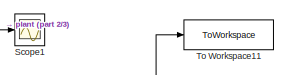
[diagram: root canvas - part 1/3, top center region]
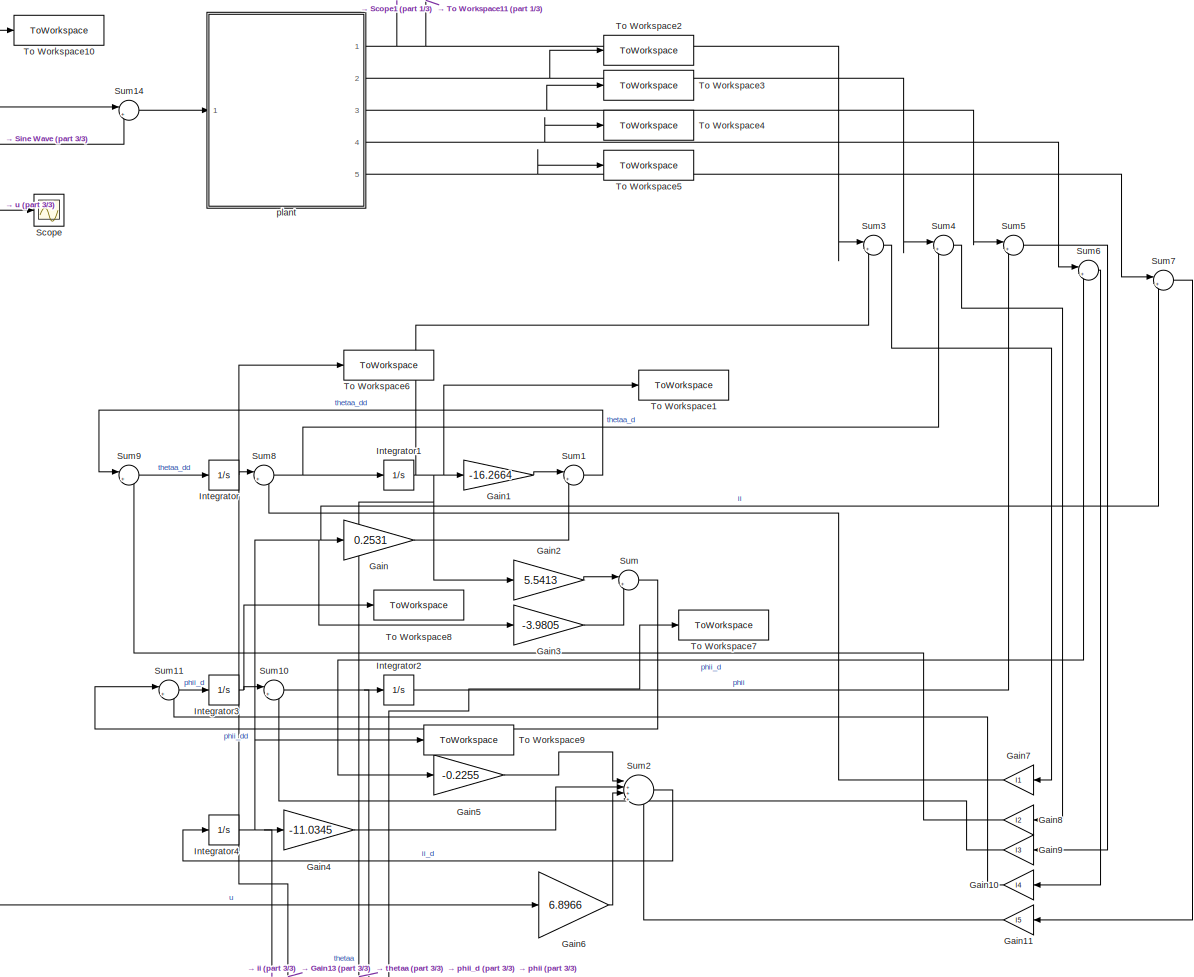
[diagram: root canvas - part 2/3, full width, middle band]
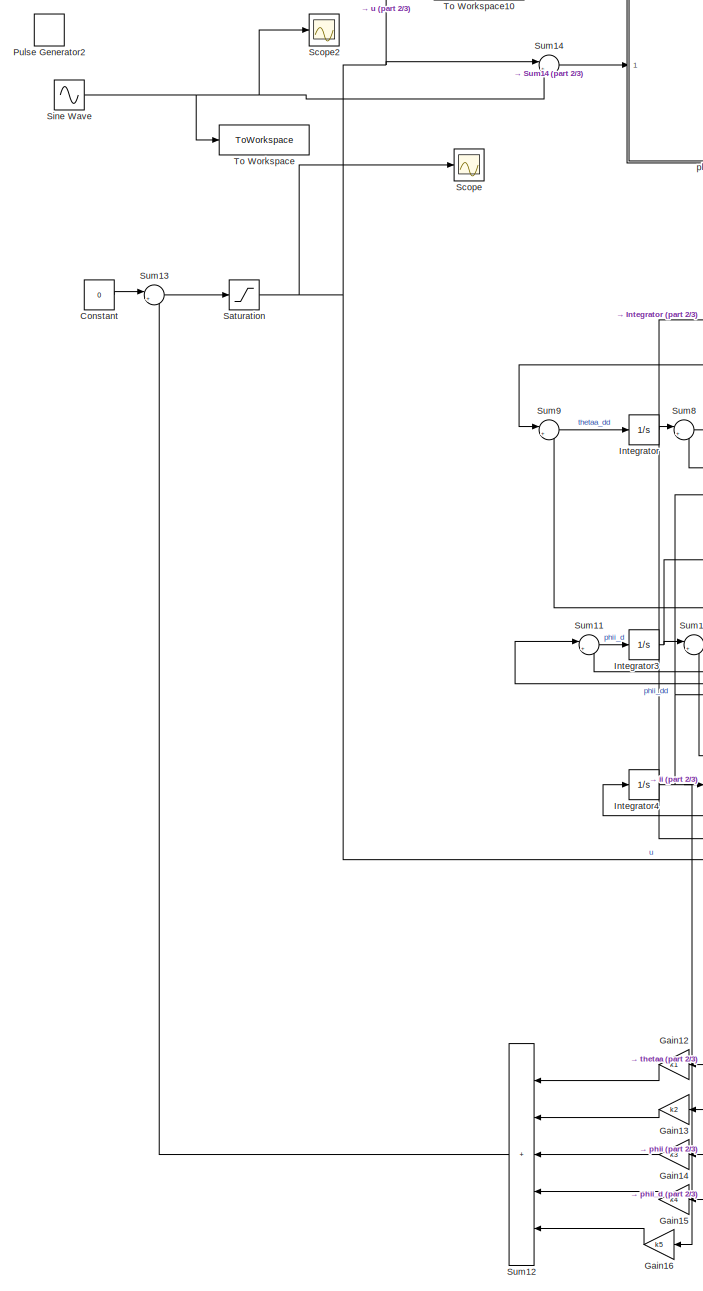
[diagram: root canvas - part 3/3, left side, full height]
MODEL slx_696339b75fb4
KIND model
CONFIG AbsTol = auto
CONFIG EnableMultiTasking = off
CONFIG FixedStep = 0.01
CONFIG MaxStep = auto
CONFIG MinStep = auto
CONFIG RelTol = 1e-3
CONFIG SampleTimeConstraint = Unconstrained
CONFIG SolverName = FixedStepAuto
CONFIG StartTime = 0.0
CONFIG StopTime = 15
BLOCK [Constant] Constant
  Value = 0
BLOCK [Gain] Gain
  Gain = 0.2531
BLOCK [Gain] Gain1
  Gain = -16.2664
BLOCK [Gain] Gain10
  Gain = l4
  NameLocation = top
BLOCK [Gain] Gain11
  Gain = l5
  NameLocation = top
BLOCK [Gain] Gain12
  Gain = k1
  NameLocation = top
BLOCK [Gain] Gain13
  Gain = k2
  NameLocation = top
BLOCK [Gain] Gain14
  Gain = k3
  NameLocation = top
BLOCK [Gain] Gain15
  Gain = k4
  NameLocation = top
BLOCK [Gain] Gain16
  Gain = k5
  NameLocation = top
BLOCK [Gain] Gain2
  Gain = 5.5413
BLOCK [Gain] Gain3
  Gain = -3.9805
BLOCK [Gain] Gain4
  Gain = -11.0345
BLOCK [Gain] Gain5
  Gain = -0.2255
BLOCK [Gain] Gain6
  Gain = 6.8966
BLOCK [Gain] Gain7
  Gain = l1
  NameLocation = top
BLOCK [Gain] Gain8
  Gain = l2
  NameLocation = top
BLOCK [Gain] Gain9
  Gain = l3
  NameLocation = top
BLOCK [Integrator] Integrator
  Ports = [1, 1]
BLOCK [Integrator] Integrator1
  Ports = [1, 1]
BLOCK [Integrator] Integrator2
  Ports = [1, 1]
BLOCK [Integrator] Integrator3
  Ports = [1, 1]
BLOCK [Integrator] Integrator4
  Ports = [1, 1]
BLOCK [DiscretePulseGenerator] Pulse Generator2
  Amplitude = 10
  Period = 5
  Ports = [0, 1]
  PulseType = Time based
  PulseWidth = 5
BLOCK [Saturate] Saturation
  LowerLimit = -6
  UpperLimit = 6
BLOCK [Scope] Scope
  Floating = off
  NumInputPorts = 1
  Ports = [1]
  ScopeSpecificationString = Simulink.scopes.TimeScopeBlockCfg('CurrentConfiguration', extmgr.ConfigurationSet(extmgr.Configuration('Core','General UI',true),extmgr.Configuration('Core','Source UI',true),extmgr.Configuration('Sources','WiredSimulink',true,'DataLoggingVariableName','ScopeData1'),extmgr.Configuration('Visuals','Time Domain',true,'SerializedDisplays',{struct('MinYLimReal','-6.75','MaxYLimReal','0.75','YLabelReal...<+1342ch>
BLOCK [Scope] Scope1
  Floating = off
  NumInputPorts = 1
  Ports = [1]
  ScopeSpecificationString = Simulink.scopes.TimeScopeBlockCfg('CurrentConfiguration', extmgr.ConfigurationSet(extmgr.Configuration('Core','General UI',true),extmgr.Configuration('Core','Source UI',true),extmgr.Configuration('Sources','WiredSimulink',true,'DataLoggingVariableName','ScopeData2'),extmgr.Configuration('Visuals','Time Domain',true,'SerializedDisplays',{struct('MinYLimReal','0.26947','MaxYLimReal','0.449','YLabelR...<+1404ch>
BLOCK [Scope] Scope2
  Floating = off
  NumInputPorts = 1
  Ports = [1]
  ScopeSpecificationString = Simulink.scopes.TimeScopeBlockCfg('CurrentConfiguration', extmgr.ConfigurationSet(extmgr.Configuration('Core','General UI',true),extmgr.Configuration('Core','Source UI',true),extmgr.Configuration('Sources','WiredSimulink',true,'DataLoggingVariableName','ScopeData1'),extmgr.Configuration('Visuals','Time Domain',true,'SerializedDisplays',{struct('MinYLimReal','-1.875','MaxYLimReal','1.875','YLabelRe...<+1356ch>
BLOCK [Sin] Sine Wave
  Amplitude = 1.5
  Ports = [0, 1]
  SampleTime = 0
BLOCK [Sum] Sum
  Inputs = |++
  Ports = [2, 1]
BLOCK [Sum] Sum1
  Inputs = |++
  Ports = [2, 1]
BLOCK [Sum] Sum10
  Inputs = |++
  Ports = [2, 1]
BLOCK [Sum] Sum11
  Inputs = |++
  Ports = [2, 1]
BLOCK [Sum] Sum12
  IconShape = rectangular
  Inputs = +++++
  NameLocation = top
  Ports = [5, 1]
BLOCK [Sum] Sum13
  Inputs = |+-
  Ports = [2, 1]
BLOCK [Sum] Sum14
  Inputs = |++
  Ports = [2, 1]
BLOCK [Sum] Sum2
  Inputs = |++++
  Ports = [4, 1]
BLOCK [Sum] Sum3
  Inputs = |+-
  Ports = [2, 1]
BLOCK [Sum] Sum4
  Inputs = |+-
  Ports = [2, 1]
BLOCK [Sum] Sum5
  Inputs = |+-
  Ports = [2, 1]
BLOCK [Sum] Sum6
  Inputs = |+-
  Ports = [2, 1]
BLOCK [Sum] Sum7
  Inputs = |+-
  Ports = [2, 1]
BLOCK [Sum] Sum8
  Inputs = |++
  Ports = [2, 1]
BLOCK [Sum] Sum9
  Inputs = |++
  Ports = [2, 1]
BLOCK [ToWorkspace] To Workspace
  FixptAsFi = on
  MaxDataPoints = inf
  Ports = [1]
  SampleTime = -1
  VariableName = di
BLOCK [ToWorkspace] To Workspace1
  FixptAsFi = on
  MaxDataPoints = inf
  Ports = [1]
  SampleTime = -1
  VariableName = th_ob
BLOCK [ToWorkspace] To Workspace10
  FixptAsFi = on
  MaxDataPoints = inf
  Ports = [1]
  SampleTime = -1
  VariableName = ef
BLOCK [ToWorkspace] To Workspace11
  FixptAsFi = on
  MaxDataPoints = inf
  Ports = [1]
  SampleTime = -1
  VariableName = th_p
BLOCK [ToWorkspace] To Workspace2
  FixptAsFi = on
  MaxDataPoints = inf
  Ports = [1]
  SampleTime = -1
  VariableName = thd_p
BLOCK [ToWorkspace] To Workspace3
  FixptAsFi = on
  MaxDataPoints = inf
  Ports = [1]
  SampleTime = -1
  VariableName = phi_p
BLOCK [ToWorkspace] To Workspace4
  FixptAsFi = on
  MaxDataPoints = inf
  Ports = [1]
  SampleTime = -1
  VariableName = phid_p
BLOCK [ToWorkspace] To Workspace5
  FixptAsFi = on
  MaxDataPoints = inf
  Ports = [1]
  SampleTime = -1
  VariableName = i_p
BLOCK [ToWorkspace] To Workspace6
  FixptAsFi = on
  MaxDataPoints = inf
  Ports = [1]
  SampleTime = -1
  VariableName = thd_ob
BLOCK [ToWorkspace] To Workspace7
  FixptAsFi = on
  MaxDataPoints = inf
  Ports = [1]
  SampleTime = -1
  VariableName = phi_ob
BLOCK [ToWorkspace] To Workspace8
  FixptAsFi = on
  MaxDataPoints = inf
  Ports = [1]
  SampleTime = -1
  VariableName = phid_ob
BLOCK [ToWorkspace] To Workspace9
  FixptAsFi = on
  MaxDataPoints = inf
  Ports = [1]
  SampleTime = -1
  VariableName = i_ob
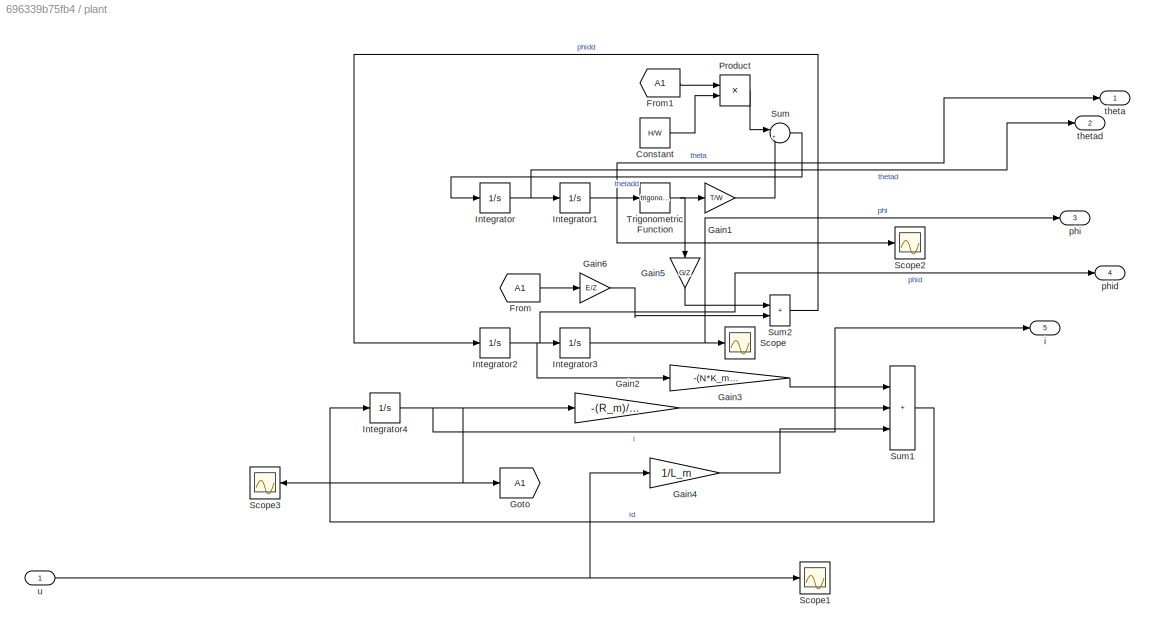
BLOCK [SubSystem] plant
  Ports = [1, 5]
  RequestExecContextInheritance = off
BLOCK [Constant] plant/Constant
  Value = H/W
BLOCK [From] plant/From
  GotoTag = A1
BLOCK [From] plant/From1
  GotoTag = A1
BLOCK [Gain] plant/Gain1
  Gain = T/W
BLOCK [Gain] plant/Gain2
  Gain = -(R_m)/L_m
BLOCK [Gain] plant/Gain3
  Gain = -(N*K_m/L_m)
BLOCK [Gain] plant/Gain4
  Gain = 1/L_m
BLOCK [Gain] plant/Gain5
  Gain = G/Z
  NameLocation = left
BLOCK [Gain] plant/Gain6
  Gain = E/Z
BLOCK [Goto] plant/Goto
  GotoTag = A1
BLOCK [Integrator] plant/Integrator
  Ports = [1, 1]
BLOCK [Integrator] plant/Integrator1
  InitialCondition = 20*pi/180
  Ports = [1, 1]
BLOCK [Integrator] plant/Integrator2
  Ports = [1, 1]
BLOCK [Integrator] plant/Integrator3
  Ports = [1, 1]
BLOCK [Integrator] plant/Integrator4
  Ports = [1, 1]
BLOCK [Product] plant/Product
  Ports = [2, 1]
BLOCK [Scope] plant/Scope
  Floating = off
  NumInputPorts = 1
  Ports = [1]
  ScopeSpecificationString = Simulink.scopes.TimeScopeBlockCfg('CurrentConfiguration', extmgr.ConfigurationSet(extmgr.Configuration('Core','General UI',true),extmgr.Configuration('Core','Source UI',true),extmgr.Configuration('Sources','WiredSimulink',true,'DataLoggingVariableName','ScopeData3'),extmgr.Configuration('Visuals','Time Domain',true,'SerializedDisplays',{struct('MinYLimReal','-11.49543','MaxYLimReal','15.20624','YL...<+1423ch>
BLOCK [Scope] plant/Scope1
  Floating = off
  NumInputPorts = 1
  Ports = [1]
  ScopeSpecificationString = Simulink.scopes.TimeScopeBlockCfg('CurrentConfiguration', extmgr.ConfigurationSet(extmgr.Configuration('Core','General UI',true),extmgr.Configuration('Core','Source UI',true),extmgr.Configuration('Sources','WiredSimulink',true,'DataLoggingVariableName','ScopeData4'),extmgr.Configuration('Visuals','Time Domain',true,'SerializedDisplays',{struct('MinYLimReal','-1.25','MaxYLimReal','1.25','YLabelReal...<+1350ch>
BLOCK [Scope] plant/Scope2
  Floating = off
  NumInputPorts = 1
  Ports = [1]
  ScopeSpecificationString = Simulink.scopes.TimeScopeBlockCfg('CurrentConfiguration', extmgr.ConfigurationSet(extmgr.Configuration('Core','General UI',true),extmgr.Configuration('Core','Source UI',true),extmgr.Configuration('Sources','WiredSimulink',true,'DataLoggingVariableName','ScopeData5'),extmgr.Configuration('Visuals','Time Domain',true,'SerializedDisplays',{struct('MinYLimReal','-0.32368','MaxYLimReal','0.42382','YLab...<+1406ch>
BLOCK [Scope] plant/Scope3
  Floating = off
  NameLocation = top
  NumInputPorts = 1
  Ports = [1]
  ScopeSpecificationString = Simulink.scopes.TimeScopeBlockCfg('CurrentConfiguration', extmgr.ConfigurationSet(extmgr.Configuration('Core','General UI',true),extmgr.Configuration('Core','Source UI',true),extmgr.Configuration('Sources','WiredSimulink',true),extmgr.Configuration('Visuals','Time Domain',true,'SerializedDisplays',{struct('MinYLimReal','-0.06859','MaxYLimReal','0.05111','YLabelReal','','MinYLimMag','0.00000','MaxY...<+1321ch>
BLOCK [Sum] plant/Sum
  Inputs = |++
  Ports = [2, 1]
BLOCK [Sum] plant/Sum1
  IconShape = rectangular
  Inputs = +++
  Ports = [3, 1]
BLOCK [Sum] plant/Sum2
  IconShape = rectangular
  Ports = [2, 1]
BLOCK [Trigonometry] plant/Trigonometric Function
  Ports = [1, 1]
BLOCK [Outport] plant/i
  Port = 5
BLOCK [Outport] plant/phi
  Port = 3
BLOCK [Outport] plant/phid
  Port = 4
BLOCK [Outport] plant/theta
BLOCK [Outport] plant/thetad
  Port = 2
BLOCK [Inport] plant/u
LINE Constant:1 -> Sum13:1
LINE Gain10:1 -> Sum11:2
LINE Gain11:1 -> Sum2:4
LINE Gain12:1 -> Sum12:1
LINE Gain13:1 -> Sum12:2
LINE Gain14:1 -> Sum12:3
LINE Gain15:1 -> Sum12:4
LINE Gain16:1 -> Sum12:5
LINE Gain1:1 -> Sum1:1
LINE Gain2:1 -> Sum:1
LINE Gain3:1 -> Sum:2
LINE Gain4:1 -> Sum2:2
LINE Gain5:1 -> Sum2:1
LINE Gain6:1 -> Sum2:3
LINE Gain7:1 -> Sum8:2
LINE Gain8:1 -> Sum9:2
LINE Gain9:1 -> Sum10:2
LINE Gain:1 -> Sum1:2
NET Integrator1:1 -> Gain12:1, Gain1:1, Gain2:1, Sum3:2, To Workspace1:1
NET Integrator2:1 -> Gain14:1, Sum5:2, To Workspace7:1
NET Integrator3:1 -> Sum10:1, To Workspace8:1
NET Integrator4:1 -> Gain16:1, Gain3:1, Gain4:1, Gain:1, Sum7:2, To Workspace9:1
NET Integrator:1 -> Gain13:1, Sum8:1, To Workspace6:1
NET Saturation:1 -> Gain6:1, Scope:1, Sum14:1, To Workspace10:1
NET Sine Wave:1 -> Scope2:1, Sum14:2, To Workspace:1
NET Sum10:1 -> Gain15:1, Gain5:1, Integrator2:1, Sum6:2
LINE Sum11:1 -> Integrator3:1
LINE Sum12:1 -> Sum13:2
LINE Sum13:1 -> Saturation:1
LINE Sum14:1 -> plant:1
LINE Sum1:1 -> Sum9:1
LINE Sum2:1 -> Integrator4:1
LINE Sum3:1 -> Gain7:1
LINE Sum4:1 -> Gain8:1
LINE Sum5:1 -> Gain9:1
LINE Sum6:1 -> Gain10:1
LINE Sum7:1 -> Gain11:1
NET Sum8:1 -> Integrator1:1, Sum4:2
LINE Sum9:1 -> Integrator:1
LINE Sum:1 -> Sum11:1
LINE plant/Constant:1 -> plant/Product:2
LINE plant/From1:1 -> plant/Product:1
LINE plant/From:1 -> plant/Gain6:1
LINE plant/Gain1:1 -> plant/Sum:2
LINE plant/Gain2:1 -> plant/Sum1:2
LINE plant/Gain3:1 -> plant/Sum1:1
LINE plant/Gain4:1 -> plant/Sum1:3
LINE plant/Gain5:1 -> plant/Sum2:1
LINE plant/Gain6:1 -> plant/Sum2:2
NET plant/Integrator1:1 -> plant/Scope2:1, plant/Trigonometric Function:1, plant/theta:1
NET plant/Integrator2:1 -> plant/Gain3:1, plant/Integrator3:1, plant/phid:1
NET plant/Integrator3:1 -> plant/Scope:1, plant/phi:1
NET plant/Integrator4:1 -> plant/Gain2:1, plant/Goto:1, plant/Scope3:1, plant/i:1
NET plant/Integrator:1 -> plant/Integrator1:1, plant/thetad:1
LINE plant/Product:1 -> plant/Sum:1
LINE plant/Sum1:1 -> plant/Integrator4:1
LINE plant/Sum2:1 -> plant/Integrator2:1
LINE plant/Sum:1 -> plant/Integrator:1
NET plant/Trigonometric Function:1 -> plant/Gain1:1, plant/Gain5:1
NET plant/u:1 -> plant/Gain4:1, plant/Scope1:1
NET plant:1 -> Scope1:1, Sum3:1, To Workspace11:1
NET plant:2 -> Sum4:1, To Workspace2:1
NET plant:3 -> Sum5:1, To Workspace3:1
NET plant:4 -> Sum6:1, To Workspace4:1
NET plant:5 -> Sum7:1, To Workspace5:1
note: NET lines group one-source signal fan-out (src -> all destinations, sorted); 1:1 wires keep LINE
